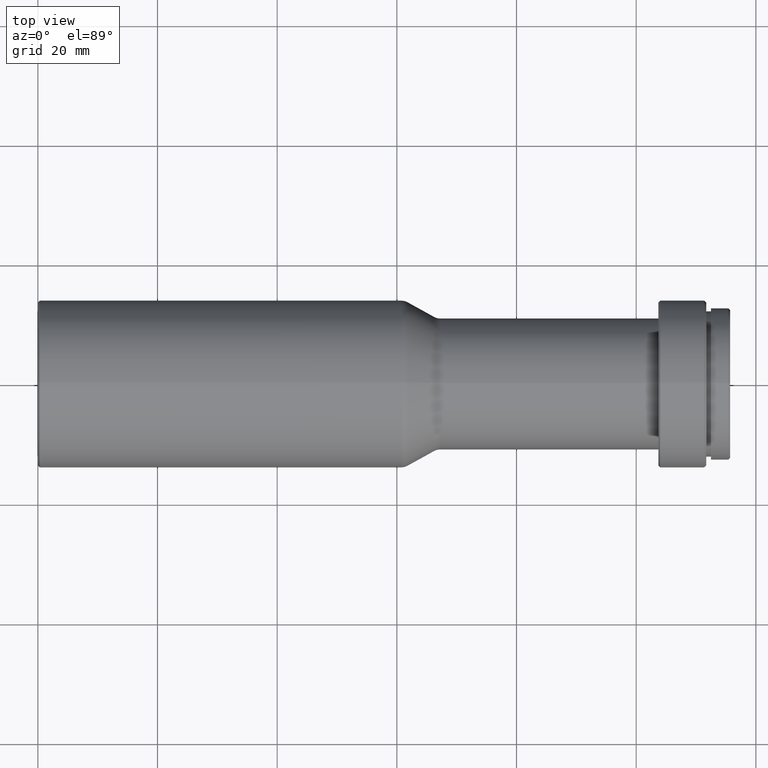
[diagram: clean part render]
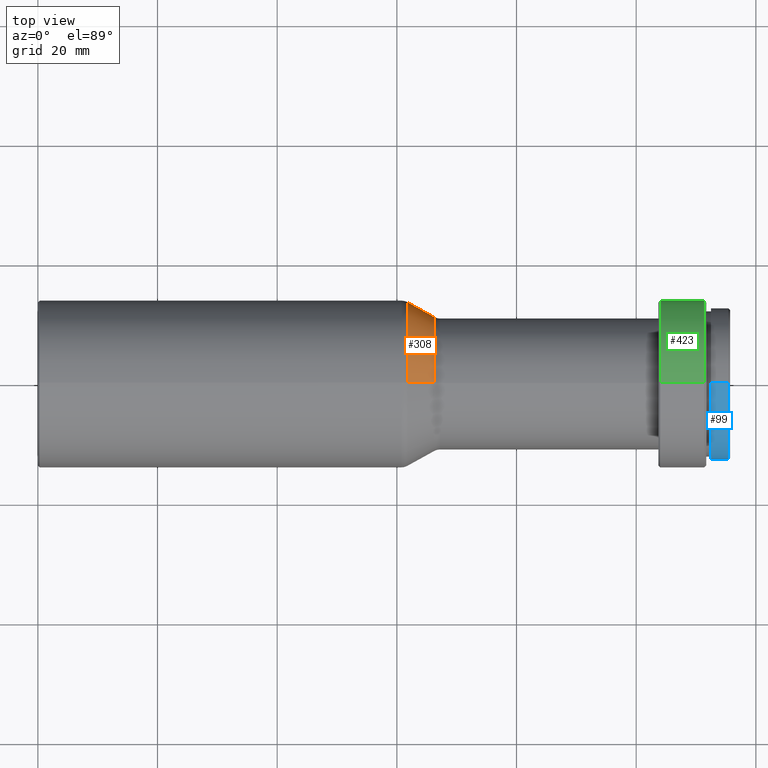
[diagram: same view with three faces highlighted in distinct colors, each labeled with its STEP entity id]
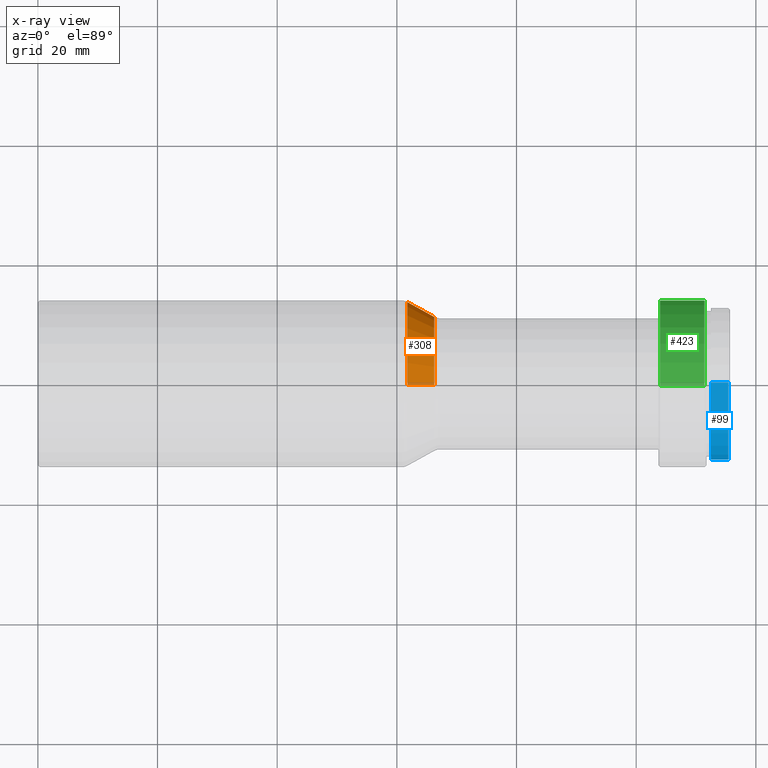
[diagram: x-ray of the same camera — body ghosted, the three highlighted faces saturated]
A machine part, top view with three faces highlighted in distinct colors.
The next image is the same camera in x-ray (body ghosted, the three faces saturated) — at least one of them is partly hidden behind the body in this view.
Their STEP definitions:

[orange] entity #308 — the highlighted conical surface has half-angle 29.055 deg.
#7 = FACE_OUTER_BOUND ( 'NONE', #610, .T. ) ;
#15 = DIRECTION ( 'NONE',  ( 0.0000000000000000000, 0.0000000000000000000, 1.000000000000000000 ) ) ;
#23 = DIRECTION ( 'NONE',  ( -0.8741572761215379300, 0.0000000000000000000, 0.4856429311786316100 ) ) ;
#24 = CARTESIAN_POINT ( 'NONE',  ( 61.75303380596247400, 1.699094229906919900E-015, -13.74831455224307100 ) ) ;
#77 = DIRECTION ( 'NONE',  ( -0.8741572761215379300, 5.947410611964494700E-017, -0.4856429311786316100 ) ) ;
#86 = CARTESIAN_POINT ( 'NONE',  ( 61.75303380596247400, 0.0000000000000000000, 13.74831455224307100 ) ) ;
#88 = EDGE_CURVE ( 'NONE', #547, #98, #381, .T. ) ;
#98 = VERTEX_POINT ( 'NONE', #24 ) ;
#139 = LINE ( 'NONE', #534, #571 ) ;
#197 = VERTEX_POINT ( 'NONE', #252 ) ;
#216 = DIRECTION ( 'NONE',  ( -1.000000000000000000, -0.0000000000000000000, -0.0000000000000000000 ) ) ;
#218 = CARTESIAN_POINT ( 'NONE',  ( 66.24696619403754000, 0.0000000000000000000, 0.0000000000000000000 ) ) ;
#224 = ORIENTED_EDGE ( 'NONE', *, *, #88, .F. ) ;
#252 = CARTESIAN_POINT ( 'NONE',  ( 66.24696619403754000, 1.530808498934191500E-015, -11.25168544775692900 ) ) ;
#274 = VECTOR ( 'NONE', #23, 1000.000000000000100 ) ;
#277 = CARTESIAN_POINT ( 'NONE',  ( 66.24696619403754000, 0.0000000000000000000, 11.25168544775692900 ) ) ;
#291 = ORIENTED_EDGE ( 'NONE', *, *, #309, .T. ) ;
#295 = DIRECTION ( 'NONE',  ( 0.0000000000000000000, 0.0000000000000000000, 1.000000000000000000 ) ) ;
#308 = ADVANCED_FACE ( 'NONE', ( #7 ), #786, .T. ) ;
#309 = EDGE_CURVE ( 'NONE', #197, #98, #139, .T. ) ;
#346 = AXIS2_PLACEMENT_3D ( 'NONE', #218, #216, #15 ) ;
#357 = LINE ( 'NONE', #277, #274 ) ;
#364 = AXIS2_PLACEMENT_3D ( 'NONE', #604, #612, #295 ) ;
#378 = EDGE_CURVE ( 'NONE', #760, #547, #357, .T. ) ;
#381 = CIRCLE ( 'NONE', #364, 13.74831455224307100 ) ;
#402 = ORIENTED_EDGE ( 'NONE', *, *, #378, .F. ) ;
#442 = CARTESIAN_POINT ( 'NONE',  ( 66.24696619403754000, 0.0000000000000000000, 11.25168544775692900 ) ) ;
#451 = EDGE_CURVE ( 'NONE', #760, #197, #672, .T. ) ;
#472 = DIRECTION ( 'NONE',  ( 0.0000000000000000000, 0.0000000000000000000, 1.000000000000000000 ) ) ;
#534 = CARTESIAN_POINT ( 'NONE',  ( 66.24696619403754000, 1.377934056860837400E-015, -11.25168544775692900 ) ) ;
#541 = DIRECTION ( 'NONE',  ( -1.000000000000000000, -0.0000000000000000000, -0.0000000000000000000 ) ) ;
#547 = VERTEX_POINT ( 'NONE', #86 ) ;
#571 = VECTOR ( 'NONE', #77, 1000.000000000000100 ) ;
#604 = CARTESIAN_POINT ( 'NONE',  ( 61.75303380596247400, 0.0000000000000000000, 0.0000000000000000000 ) ) ;
#610 = EDGE_LOOP ( 'NONE', ( #704, #291, #224, #402 ) ) ;
#612 = DIRECTION ( 'NONE',  ( -1.000000000000000000, -0.0000000000000000000, -0.0000000000000000000 ) ) ;
#667 = CARTESIAN_POINT ( 'NONE',  ( 66.24696619403754000, 0.0000000000000000000, 0.0000000000000000000 ) ) ;
#672 = CIRCLE ( 'NONE', #699, 11.25168544775692900 ) ;
#699 = AXIS2_PLACEMENT_3D ( 'NONE', #667, #541, #472 ) ;
#704 = ORIENTED_EDGE ( 'NONE', *, *, #451, .T. ) ;
#760 = VERTEX_POINT ( 'NONE', #442 ) ;
#786 = CONICAL_SURFACE ( 'NONE', #346, 11.25168544775692900, 0.5070985043923365000 ) ;

[blue] entity #99 — the highlighted cylindrical surface (partial cylindrical patch) has radius 12.7 mm, axis along (-1, -0, -0).
#17 = CIRCLE ( 'NONE', #168, 12.70000000000000100 ) ;
#19 = AXIS2_PLACEMENT_3D ( 'NONE', #781, #400, #482 ) ;
#37 = CARTESIAN_POINT ( 'NONE',  ( 112.5000000000000000, 1.555301434917138600E-015, -12.70000000000000100 ) ) ;
#50 = ORIENTED_EDGE ( 'NONE', *, *, #266, .F. ) ;
#58 = LINE ( 'NONE', #546, #463 ) ;
#78 = DIRECTION ( 'NONE',  ( -1.000000000000000000, -0.0000000000000000000, -0.0000000000000000000 ) ) ;
#93 = EDGE_CURVE ( 'NONE', #393, #709, #795, .T. ) ;
#99 = ADVANCED_FACE ( 'NONE', ( #642 ), #464, .T. ) ;
#105 = VERTEX_POINT ( 'NONE', #37 ) ;
#121 = ORIENTED_EDGE ( 'NONE', *, *, #470, .T. ) ;
#122 = VERTEX_POINT ( 'NONE', #290 ) ;
#133 = AXIS2_PLACEMENT_3D ( 'NONE', #158, #404, #285 ) ;
#158 = CARTESIAN_POINT ( 'NONE',  ( 0.0000000000000000000, 0.0000000000000000000, 0.0000000000000000000 ) ) ;
#168 = AXIS2_PLACEMENT_3D ( 'NONE', #462, #78, #532 ) ;
#247 = CARTESIAN_POINT ( 'NONE',  ( 115.4000000000000300, 0.0000000000000000000, 12.70000000000000100 ) ) ;
#266 = EDGE_CURVE ( 'NONE', #393, #105, #751, .T. ) ;
#285 = DIRECTION ( 'NONE',  ( 0.0000000000000000000, 0.0000000000000000000, 1.000000000000000000 ) ) ;
#290 = CARTESIAN_POINT ( 'NONE',  ( 112.5000000000000000, 0.0000000000000000000, 12.70000000000000100 ) ) ;
#393 = VERTEX_POINT ( 'NONE', #536 ) ;
#400 = DIRECTION ( 'NONE',  ( -1.000000000000000000, -0.0000000000000000000, -0.0000000000000000000 ) ) ;
#404 = DIRECTION ( 'NONE',  ( -1.000000000000000000, -0.0000000000000000000, -0.0000000000000000000 ) ) ;
#415 = EDGE_CURVE ( 'NONE', #105, #122, #17, .T. ) ;
#431 = DIRECTION ( 'NONE',  ( -1.000000000000000000, -0.0000000000000000000, -0.0000000000000000000 ) ) ;
#462 = CARTESIAN_POINT ( 'NONE',  ( 112.5000000000000000, 0.0000000000000000000, 0.0000000000000000000 ) ) ;
#463 = VECTOR ( 'NONE', #658, 1000.000000000000000 ) ;
#464 = CYLINDRICAL_SURFACE ( 'NONE', #133, 12.70000000000000100 ) ;
#470 = EDGE_CURVE ( 'NONE', #709, #122, #58, .T. ) ;
#482 = DIRECTION ( 'NONE',  ( 0.0000000000000000000, 0.0000000000000000000, 1.000000000000000000 ) ) ;
#503 = CARTESIAN_POINT ( 'NONE',  ( 0.0000000000000000000, 1.555301434917138600E-015, -12.70000000000000100 ) ) ;
#521 = ORIENTED_EDGE ( 'NONE', *, *, #93, .T. ) ;
#532 = DIRECTION ( 'NONE',  ( 0.0000000000000000000, 0.0000000000000000000, 1.000000000000000000 ) ) ;
#536 = CARTESIAN_POINT ( 'NONE',  ( 115.4000000000000300, 1.555301434917138600E-015, -12.70000000000000100 ) ) ;
#546 = CARTESIAN_POINT ( 'NONE',  ( 0.0000000000000000000, 0.0000000000000000000, 12.70000000000000100 ) ) ;
#642 = FACE_OUTER_BOUND ( 'NONE', #809, .T. ) ;
#658 = DIRECTION ( 'NONE',  ( -1.000000000000000000, -0.0000000000000000000, -0.0000000000000000000 ) ) ;
#662 = VECTOR ( 'NONE', #431, 1000.000000000000000 ) ;
#709 = VERTEX_POINT ( 'NONE', #247 ) ;
#751 = LINE ( 'NONE', #503, #662 ) ;
#781 = CARTESIAN_POINT ( 'NONE',  ( 115.4000000000000300, 0.0000000000000000000, 0.0000000000000000000 ) ) ;
#795 = CIRCLE ( 'NONE', #19, 12.70000000000000100 ) ;
#808 = ORIENTED_EDGE ( 'NONE', *, *, #415, .F. ) ;
#809 = EDGE_LOOP ( 'NONE', ( #50, #521, #121, #808 ) ) ;

[green] entity #423 — the highlighted cylindrical surface (partial cylindrical patch) has radius 14 mm, axis along (-1, -0, -0).
#6 = EDGE_CURVE ( 'NONE', #9, #712, #542, .T. ) ;
#9 = VERTEX_POINT ( 'NONE', #467 ) ;
#11 = CARTESIAN_POINT ( 'NONE',  ( 111.4000000000000200, 0.0000000000000000000, 0.0000000000000000000 ) ) ;
#18 = DIRECTION ( 'NONE',  ( -1.000000000000000000, -0.0000000000000000000, -0.0000000000000000000 ) ) ;
#45 = CARTESIAN_POINT ( 'NONE',  ( 111.4000000000000200, 1.714505518806294600E-015, -14.00000000000000000 ) ) ;
#92 = LINE ( 'NONE', #483, #748 ) ;
#160 = EDGE_CURVE ( 'NONE', #281, #787, #633, .T. ) ;
#174 = ORIENTED_EDGE ( 'NONE', *, *, #284, .T. ) ;
#179 = CARTESIAN_POINT ( 'NONE',  ( 104.0000000000000100, 0.0000000000000000000, 0.0000000000000000000 ) ) ;
#182 = AXIS2_PLACEMENT_3D ( 'NONE', #652, #18, #336 ) ;
#281 = VERTEX_POINT ( 'NONE', #745 ) ;
#284 = EDGE_CURVE ( 'NONE', #712, #787, #618, .T. ) ;
#318 = CARTESIAN_POINT ( 'NONE',  ( 0.0000000000000000000, 1.714505518806294600E-015, -14.00000000000000000 ) ) ;
#336 = DIRECTION ( 'NONE',  ( 0.0000000000000000000, 0.0000000000000000000, 1.000000000000000000 ) ) ;
#391 = CYLINDRICAL_SURFACE ( 'NONE', #182, 14.00000000000000000 ) ;
#405 = DIRECTION ( 'NONE',  ( -1.000000000000000000, -0.0000000000000000000, -0.0000000000000000000 ) ) ;
#423 = ADVANCED_FACE ( 'NONE', ( #607 ), #391, .T. ) ;
#432 = AXIS2_PLACEMENT_3D ( 'NONE', #11, #523, #459 ) ;
#439 = ORIENTED_EDGE ( 'NONE', *, *, #160, .F. ) ;
#459 = DIRECTION ( 'NONE',  ( 0.0000000000000000000, 0.0000000000000000000, 1.000000000000000000 ) ) ;
#467 = CARTESIAN_POINT ( 'NONE',  ( 111.4000000000000200, 0.0000000000000000000, 14.00000000000000000 ) ) ;
#483 = CARTESIAN_POINT ( 'NONE',  ( 0.0000000000000000000, 0.0000000000000000000, 14.00000000000000000 ) ) ;
#486 = VECTOR ( 'NONE', #810, 1000.000000000000000 ) ;
#514 = CARTESIAN_POINT ( 'NONE',  ( 104.0000000000000100, 0.0000000000000000000, -14.00000000000000000 ) ) ;
#522 = EDGE_CURVE ( 'NONE', #9, #281, #92, .T. ) ;
#523 = DIRECTION ( 'NONE',  ( -1.000000000000000000, -0.0000000000000000000, -0.0000000000000000000 ) ) ;
#535 = AXIS2_PLACEMENT_3D ( 'NONE', #179, #619, #802 ) ;
#542 = CIRCLE ( 'NONE', #432, 14.00000000000000000 ) ;
#607 = FACE_OUTER_BOUND ( 'NONE', #673, .T. ) ;
#618 = LINE ( 'NONE', #318, #486 ) ;
#619 = DIRECTION ( 'NONE',  ( -1.000000000000000000, -0.0000000000000000000, -0.0000000000000000000 ) ) ;
#633 = CIRCLE ( 'NONE', #535, 14.00000000000000000 ) ;
#636 = ORIENTED_EDGE ( 'NONE', *, *, #6, .T. ) ;
#652 = CARTESIAN_POINT ( 'NONE',  ( 0.0000000000000000000, 0.0000000000000000000, 0.0000000000000000000 ) ) ;
#655 = ORIENTED_EDGE ( 'NONE', *, *, #522, .F. ) ;
#673 = EDGE_LOOP ( 'NONE', ( #636, #174, #439, #655 ) ) ;
#712 = VERTEX_POINT ( 'NONE', #45 ) ;
#745 = CARTESIAN_POINT ( 'NONE',  ( 104.0000000000000100, 1.714505518806294600E-015, 14.00000000000000000 ) ) ;
#748 = VECTOR ( 'NONE', #405, 1000.000000000000000 ) ;
#787 = VERTEX_POINT ( 'NONE', #514 ) ;
#802 = DIRECTION ( 'NONE',  ( 0.0000000000000000000, 0.0000000000000000000, 1.000000000000000000 ) ) ;
#810 = DIRECTION ( 'NONE',  ( -1.000000000000000000, -0.0000000000000000000, -0.0000000000000000000 ) ) ;